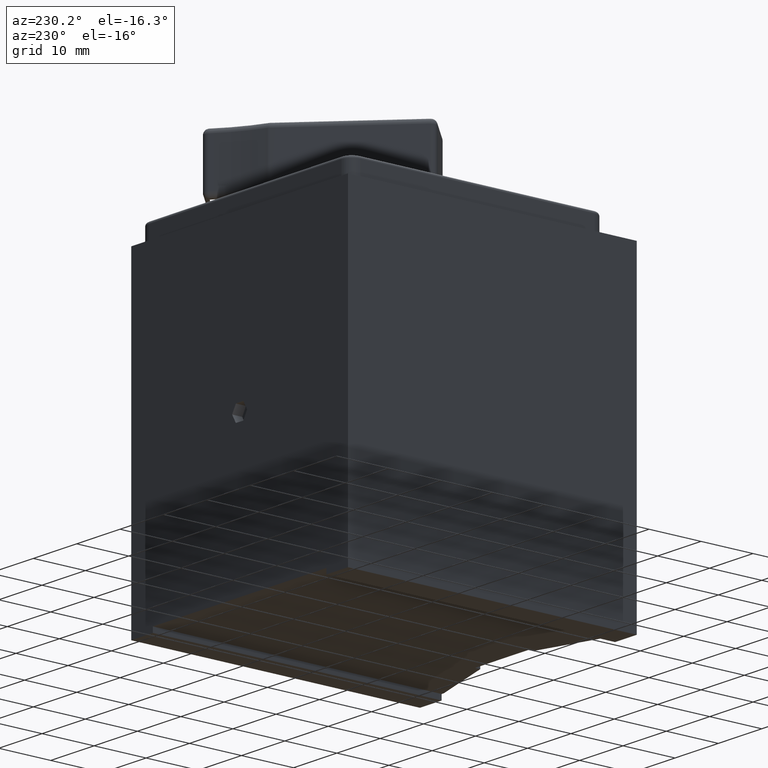
[diagram: clean part render]
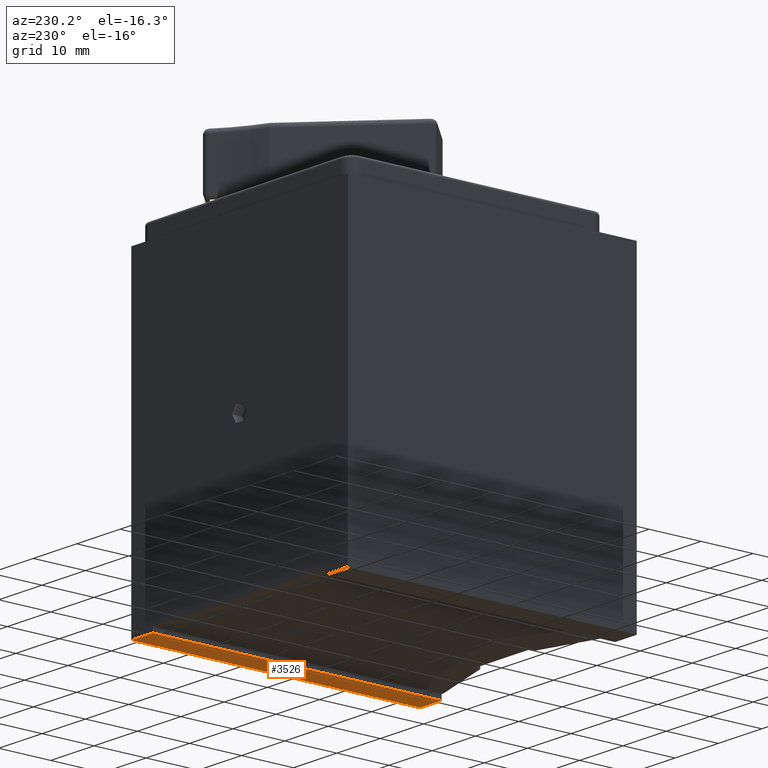
[diagram: same view with one face highlighted and labeled with its STEP entity id]
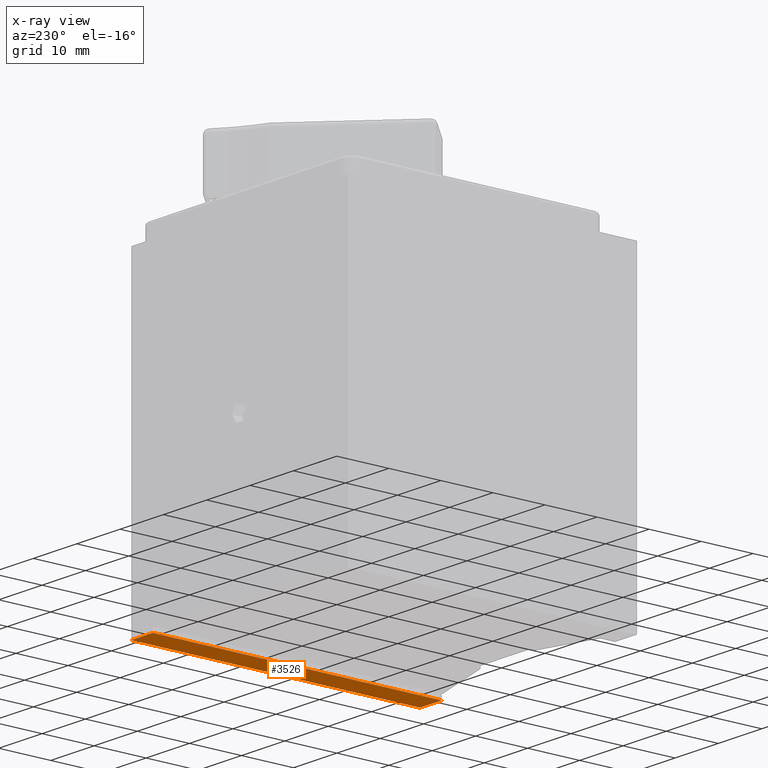
[diagram: x-ray of the same camera — body ghosted, the highlighted face saturated]
A machine part, auxiliary view. The second image highlights one B-rep face of the part: STEP entity #3526.
The next image is the same camera in x-ray: the body ghosted, the highlighted face saturated — about 0% of this face is hidden behind the body in this view.
In plain terms, the highlighted planar face has unit normal (-0, 0, 1).
Its self-contained STEP definition (entity closure, byte-faithful):
#132 = VECTOR ( 'NONE', #2010, 1000.000000000000000 ) ;
#174 = VECTOR ( 'NONE', #4629, 1000.000000000000000 ) ;
#284 = ORIENTED_EDGE ( 'NONE', *, *, #5319, .F. ) ;
#825 = EDGE_CURVE ( 'NONE', #1549, #4799, #4421, .T. ) ;
#843 = DIRECTION ( 'NONE',  ( -0.0000000000000000000, 0.0000000000000000000, 1.000000000000000000 ) ) ;
#972 = CARTESIAN_POINT ( 'NONE',  ( 18.07474630655243800, 27.78934803234974300, 47.69999999997618500 ) ) ;
#1021 = VERTEX_POINT ( 'NONE', #4332 ) ;
#1054 = VECTOR ( 'NONE', #3545, 1000.000000000000000 ) ;
#1412 = DIRECTION ( 'NONE',  ( 1.000000000000000000, 0.0000000000000000000, 0.0000000000000000000 ) ) ;
#1549 = VERTEX_POINT ( 'NONE', #3331 ) ;
#2010 = DIRECTION ( 'NONE',  ( -6.251255769285791600E-017, 1.000000000000000000, -0.0000000000000000000 ) ) ;
#2160 = ORIENTED_EDGE ( 'NONE', *, *, #5537, .F. ) ;
#2298 = LINE ( 'NONE', #4048, #1054 ) ;
#2448 = LINE ( 'NONE', #2911, #4887 ) ;
#2601 = VERTEX_POINT ( 'NONE', #972 ) ;
#2602 = LINE ( 'NONE', #2957, #132 ) ;
#2911 = CARTESIAN_POINT ( 'NONE',  ( 13.07474630655244700, -19.89247014946846500, 47.69999999997618500 ) ) ;
#2957 = CARTESIAN_POINT ( 'NONE',  ( 18.07474630655243800, 27.78934803234974300, 47.69999999997618500 ) ) ;
#3331 = CARTESIAN_POINT ( 'NONE',  ( 13.07474630655244700, -27.71065196765026400, 47.69999999997618500 ) ) ;
#3384 = DIRECTION ( 'NONE',  ( -1.387778780781444200E-016, 1.000000000000000000, 0.0000000000000000000 ) ) ;
#3526 = ADVANCED_FACE ( 'NONE', ( #5274 ), #3554, .F. ) ;
#3545 = DIRECTION ( 'NONE',  ( -1.000000000000000000, -1.387778780781444200E-016, -0.0000000000000000000 ) ) ;
#3554 = PLANE ( 'NONE',  #5340 ) ;
#3590 = CARTESIAN_POINT ( 'NONE',  ( -13.22525369344755900, -19.89247014946846900, 47.69999999997618500 ) ) ;
#3646 = EDGE_LOOP ( 'NONE', ( #4209, #3852, #2160, #284 ) ) ;
#3709 = CARTESIAN_POINT ( 'NONE',  ( 18.07474630655243800, -27.71065196765025700, 47.69999999997618500 ) ) ;
#3852 = ORIENTED_EDGE ( 'NONE', *, *, #5818, .T. ) ;
#4048 = CARTESIAN_POINT ( 'NONE',  ( -31.92525369344761900, 27.78934803234973600, 47.69999999997618500 ) ) ;
#4145 = CARTESIAN_POINT ( 'NONE',  ( 12.57474630655249800, -27.71065196765026400, 47.69999999997618500 ) ) ;
#4209 = ORIENTED_EDGE ( 'NONE', *, *, #825, .F. ) ;
#4332 = CARTESIAN_POINT ( 'NONE',  ( 13.07474630655244000, 27.78934803234974300, 47.69999999997618500 ) ) ;
#4421 = LINE ( 'NONE', #4145, #174 ) ;
#4629 = DIRECTION ( 'NONE',  ( 1.000000000000000000, 1.261617073437691100E-015, 0.0000000000000000000 ) ) ;
#4799 = VERTEX_POINT ( 'NONE', #3709 ) ;
#4887 = VECTOR ( 'NONE', #3384, 1000.000000000000000 ) ;
#5274 = FACE_OUTER_BOUND ( 'NONE', #3646, .T. ) ;
#5319 = EDGE_CURVE ( 'NONE', #4799, #2601, #2602, .T. ) ;
#5340 = AXIS2_PLACEMENT_3D ( 'NONE', #3590, #843, #1412 ) ;
#5537 = EDGE_CURVE ( 'NONE', #2601, #1021, #2298, .T. ) ;
#5818 = EDGE_CURVE ( 'NONE', #1549, #1021, #2448, .T. ) ;